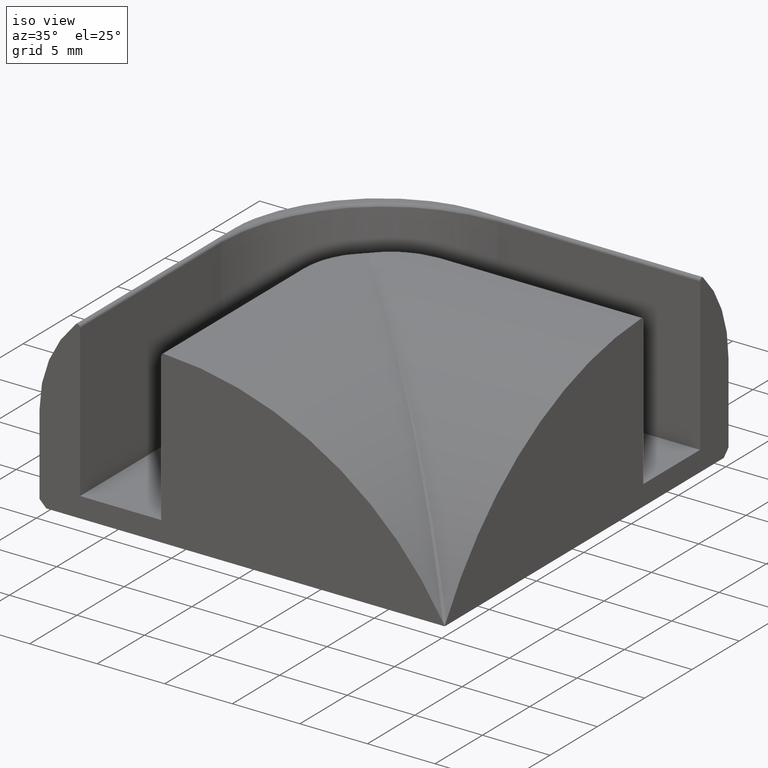
[diagram: clean part render]
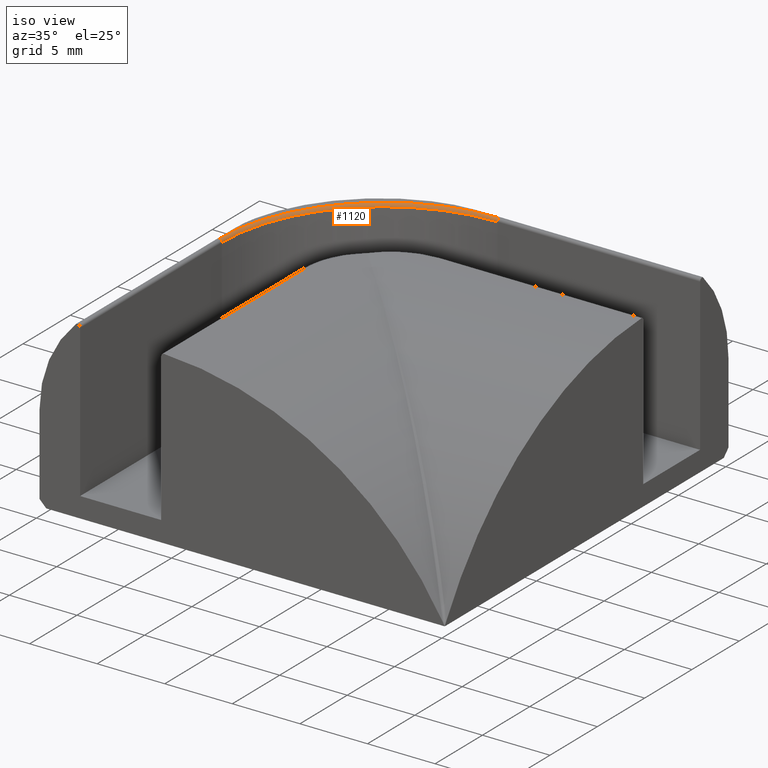
[diagram: same view with one face highlighted and labeled with its STEP entity id]
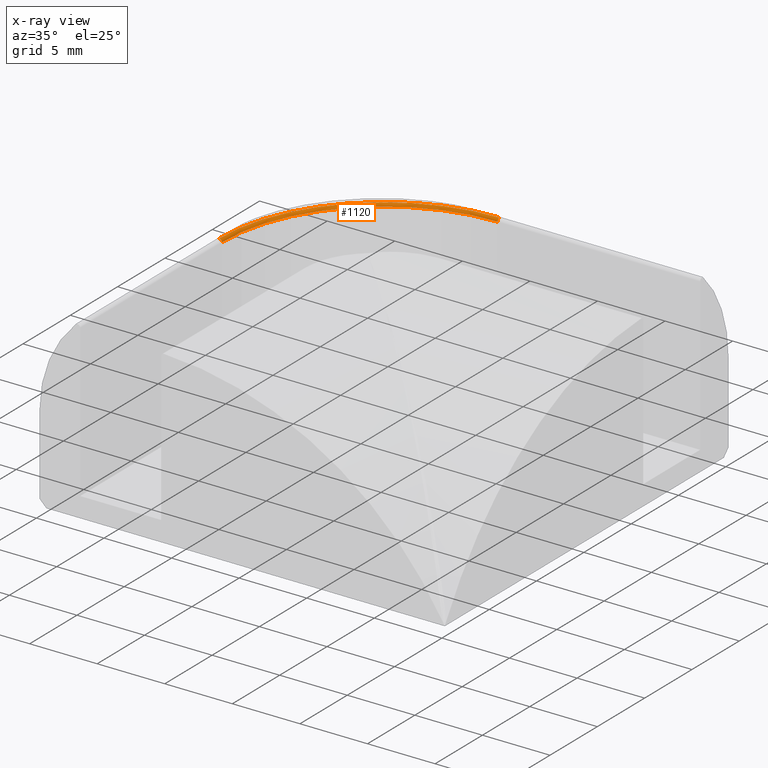
[diagram: x-ray of the same camera — body ghosted, the highlighted face saturated]
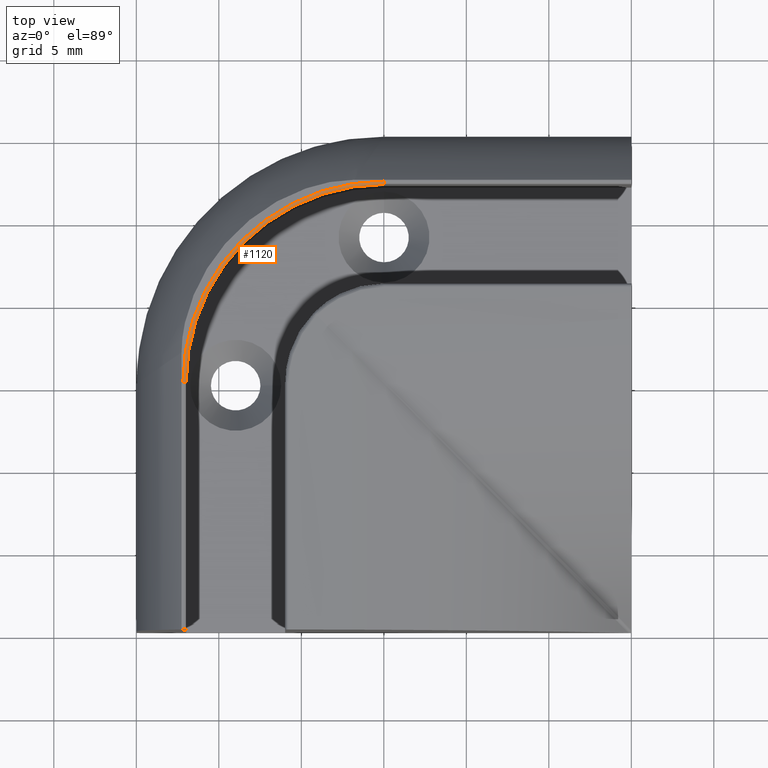
[diagram: same view with one face highlighted and labeled with its STEP entity id]
A machine part, iso view. The second image highlights one B-rep face of the part: STEP entity #1120.
The next image is the same camera in x-ray: the body ghosted, the highlighted face saturated — about 0% of this face is hidden behind the body in this view.
A second angle (top view) of the same face is appended — the face is thin or edge-on in the first view.
In plain terms, the highlighted face is a freeform B-spline surface patch.
Its self-contained STEP definition (entity closure, byte-faithful):
#863=CARTESIAN_POINT('',(-27.179082829488493,15.282160070544137,12.641907809360530));
#864=VERTEX_POINT('',#863);
#865=CARTESIAN_POINT('',(-26.979082826508261,15.282160070544137,12.441907806380298));
#866=VERTEX_POINT('',#865);
#867=CARTESIAN_POINT('',(-27.179082829488493,15.282160070544137,12.441907806380298));
#868=DIRECTION('',(0.0,1.0,-6.123234E-017));
#869=DIRECTION('',(1.0,0.0,0.0));
#870=AXIS2_PLACEMENT_3D('',#867,#868,#869);
#871=CIRCLE('',#870,0.200000002980232);
#872=EDGE_CURVE('',#864,#866,#871,.T.);
#905=CARTESIAN_POINT('',(-14.979082826508261,27.282160070544137,12.441907806380298));
#906=VERTEX_POINT('',#905);
#924=CARTESIAN_POINT('',(-14.979082826508261,27.482160073524369,12.641907809360530));
#925=VERTEX_POINT('',#924);
#932=CARTESIAN_POINT('',(-14.979082826508261,27.482160073524369,12.441907806380298));
#933=DIRECTION('',(-1.0,0.0,0.0));
#934=DIRECTION('',(0.0,-1.0,6.123234E-017));
#935=AXIS2_PLACEMENT_3D('',#932,#933,#934);
#936=CIRCLE('',#935,0.200000002980232);
#937=EDGE_CURVE('',#906,#925,#936,.T.);
#954=CARTESIAN_POINT('',(-14.979082826508261,15.282160070544137,12.641907809360530));
#955=DIRECTION('',(0.0,6.123234E-017,1.0));
#956=DIRECTION('',(0.0,1.0,-6.123234E-017));
#957=AXIS2_PLACEMENT_3D('',#954,#955,#956);
#958=CIRCLE('',#957,12.200000002980232);
#959=EDGE_CURVE('',#925,#864,#958,.T.);
#1007=CARTESIAN_POINT('',(-14.979082826508261,15.282160070544137,12.441907806380298));
#1008=DIRECTION('',(0.0,6.123234E-017,1.0));
#1009=DIRECTION('',(0.0,1.0,-6.123234E-017));
#1010=AXIS2_PLACEMENT_3D('',#1007,#1008,#1009);
#1011=CIRCLE('',#1010,12.0);
#1012=EDGE_CURVE('',#906,#866,#1011,.T.);
#1036=CARTESIAN_POINT('',(-14.979082826508261,27.282160070544137,12.441907806380298));
#1037=CARTESIAN_POINT('',(-14.979082826508261,27.282160070544137,12.467919849703391));
#1038=CARTESIAN_POINT('',(-14.979082826508265,27.292567825922387,12.520513371020270));
#1039=CARTESIAN_POINT('',(-14.979082826508257,27.337077489067873,12.586990390836782));
#1040=CARTESIAN_POINT('',(-14.979082826508263,27.403554508884405,12.631500053982290));
#1041=CARTESIAN_POINT('',(-14.979082826508261,27.456148030201277,12.641907809360530));
#1042=CARTESIAN_POINT('',(-14.979082826508261,27.482160073524369,12.641907809360530));
#1043=CARTESIAN_POINT('',(-15.763219949144746,27.282160070544133,12.441907806380298));
#1044=CARTESIAN_POINT('',(-15.763219949144746,27.282160070544133,12.467919849703391));
#1045=CARTESIAN_POINT('',(-15.763900041424366,27.292567825922383,12.520513371020270));
#1046=CARTESIAN_POINT('',(-15.766808514690062,27.337077489067877,12.586990390836782));
#1047=CARTESIAN_POINT('',(-15.771152439610097,27.403554508884408,12.631500053982290));
#1048=CARTESIAN_POINT('',(-15.774589150649657,27.456148030201273,12.641907809360530));
#1049=CARTESIAN_POINT('',(-15.776288901383429,27.482160073524369,12.641907809360530));
#1050=CARTESIAN_POINT('',(-17.335839998323738,27.127451650270100,12.441907806380298));
#1051=CARTESIAN_POINT('',(-17.335839998323738,27.127451650270100,12.467919849703389));
#1052=CARTESIAN_POINT('',(-17.337884044334587,27.137725225032231,12.520513371020268));
#1053=CARTESIAN_POINT('',(-17.346625583320691,27.181661053205062,12.586990390836782));
#1054=CARTESIAN_POINT('',(-17.359681432755146,27.247281026794894,12.631500053982290));
#1055=CARTESIAN_POINT('',(-17.370010612634697,27.299196493061800,12.641907809360532));
#1056=CARTESIAN_POINT('',(-17.375119285105963,27.324873179540678,12.641907809360532));
#1057=CARTESIAN_POINT('',(-19.600730226360600,26.440179730535863,12.441907806380298));
#1058=CARTESIAN_POINT('',(-19.600730226360600,26.440179730535863,12.467919849703394));
#1059=CARTESIAN_POINT('',(-19.604738640992455,26.449857225463123,12.520513371020277));
#1060=CARTESIAN_POINT('',(-19.621880971737831,26.491243866832853,12.586990390836785));
#1061=CARTESIAN_POINT('',(-19.647483750553260,26.553056524670389,12.631500053982290));
#1062=CARTESIAN_POINT('',(-19.667739476473521,26.601959820073894,12.641907809360527));
#1063=CARTESIAN_POINT('',(-19.677757684172608,26.626146727640190,12.641907809360527));
#1064=CARTESIAN_POINT('',(-21.688943185569890,25.324116191663901,12.441907806380302));
#1065=CARTESIAN_POINT('',(-21.688943185569890,25.324116191663901,12.467919849703392));
#1066=CARTESIAN_POINT('',(-21.694762734339836,25.332825710232864,12.520513371020263));
#1067=CARTESIAN_POINT('',(-21.719650536367762,25.370072717255614,12.586990390836789));
#1068=CARTESIAN_POINT('',(-21.756821496372375,25.425702660260647,12.631500053982290));
#1069=CARTESIAN_POINT('',(-21.786229428358013,25.469714479703907,12.641907809360536));
#1070=CARTESIAN_POINT('',(-21.800774193220658,25.491482129509837,12.641907809360536));
#1071=CARTESIAN_POINT('',(-23.519050767820765,23.822128011856641,12.441907806380296));
#1072=CARTESIAN_POINT('',(-23.519050767820765,23.822128011856641,12.467919849703391));
#1073=CARTESIAN_POINT('',(-23.526457592593378,23.829534836629254,12.520513371020265));
#1074=CARTESIAN_POINT('',(-23.558133517288457,23.861210761324337,12.586990390836784));
#1075=CARTESIAN_POINT('',(-23.605442818794060,23.908520062829936,12.631500053982290));
#1076=CARTESIAN_POINT('',(-23.642871734291290,23.945948978327166,12.641907809360527));
#1077=CARTESIAN_POINT('',(-23.661383568963565,23.964460812999441,12.641907809360527));
#1078=CARTESIAN_POINT('',(-25.021038947628014,21.992020429605766,12.441907806380298));
#1079=CARTESIAN_POINT('',(-25.021038947628014,21.992020429605766,12.467919849703392));
#1080=CARTESIAN_POINT('',(-25.029748466196978,21.997839978375705,12.520513371020263));
#1081=CARTESIAN_POINT('',(-25.066995473219730,22.022727780403638,12.586990390836785));
#1082=CARTESIAN_POINT('',(-25.122625416224764,22.059898740408251,12.631500053982290));
#1083=CARTESIAN_POINT('',(-25.166637235668023,22.089306672393892,12.641907809360529));
#1084=CARTESIAN_POINT('',(-25.188404885473961,22.103851437256537,12.641907809360529));
#1085=CARTESIAN_POINT('',(-26.137102486499998,19.903807470396483,12.441907806380298));
#1086=CARTESIAN_POINT('',(-26.137102486499998,19.903807470396483,12.467919849703394));
#1087=CARTESIAN_POINT('',(-26.146779981427230,19.907815885028327,12.520513371020265));
#1088=CARTESIAN_POINT('',(-26.188166622796992,19.924958215773721,12.586990390836789));
#1089=CARTESIAN_POINT('',(-26.249979280634530,19.950560994589132,12.631500053982291));
#1090=CARTESIAN_POINT('',(-26.298882576038014,19.970816720509397,12.641907809360532));
#1091=CARTESIAN_POINT('',(-26.323069483604321,19.980834928208481,12.641907809360532));
#1092=CARTESIAN_POINT('',(-26.824374406234227,17.638917242359611,12.441907806380296));
#1093=CARTESIAN_POINT('',(-26.824374406234227,17.638917242359611,12.467919849703392));
#1094=CARTESIAN_POINT('',(-26.834647980996372,17.640961288370463,12.520513371020268));
#1095=CARTESIAN_POINT('',(-26.878583809169193,17.649702827356563,12.586990390836791));
#1096=CARTESIAN_POINT('',(-26.944203782759004,17.662758676791029,12.631500053982290));
#1097=CARTESIAN_POINT('',(-26.996119249025924,17.673087856670577,12.641907809360532));
#1098=CARTESIAN_POINT('',(-27.021795935504795,17.678196529141850,12.641907809360532));
#1099=CARTESIAN_POINT('',(-26.979082826508254,16.066297193180620,12.441907806380298));
#1100=CARTESIAN_POINT('',(-26.979082826508261,16.066297193180620,12.467919849703391));
#1101=CARTESIAN_POINT('',(-26.989490581886496,16.066977285460240,12.520513371020270));
#1102=CARTESIAN_POINT('',(-27.034000245032004,16.069885758725938,12.586990390836784));
#1103=CARTESIAN_POINT('',(-27.100477264848521,16.074229683645974,12.631500053982290));
#1104=CARTESIAN_POINT('',(-27.153070786165397,16.077666394685533,12.641907809360530));
#1105=CARTESIAN_POINT('',(-27.179082829488493,16.079366145419307,12.641907809360530));
#1106=CARTESIAN_POINT('',(-26.979082826508261,15.282160070544137,12.441907806380298));
#1107=CARTESIAN_POINT('',(-26.979082826508261,15.282160070544137,12.467919849703391));
#1108=CARTESIAN_POINT('',(-26.989490581886507,15.282160070544140,12.520513371020270));
#1109=CARTESIAN_POINT('',(-27.034000245031997,15.282160070544135,12.586990390836782));
#1110=CARTESIAN_POINT('',(-27.100477264848529,15.282160070544137,12.631500053982290));
#1111=CARTESIAN_POINT('',(-27.153070786165401,15.282160070544137,12.641907809360530));
#1112=CARTESIAN_POINT('',(-27.179082829488493,15.282160070544137,12.641907809360530));
#1113=B_SPLINE_SURFACE_WITH_KNOTS('',3,3,((#1036,#1043,#1050,#1057,#1064,#1071,#1078,#1085,#1092,#1099,#1106),(#1037,#1044,#1051,#1058,#1065,#1072,#1079,#1086,#1093,#1100,#1107),(#1038,#1045,#1052,#1059,#1066,#1073,#1080,#1087,#1094,#1101,#1108),(#1039,#1046,#1053,#1060,#1067,#1074,#1081,#1088,#1095,#1102,#1109),(#1040,#1047,#1054,#1061,#1068,#1075,#1082,#1089,#1096,#1103,#1110),(#1041,#1048,#1055,#1062,#1069,#1076,#1083,#1090,#1097,#1104,#1111),(#1042,#1049,#1056,#1063,#1070,#1077,#1084,#1091,#1098,#1105,#1112)),.UNSPECIFIED.,.F.,.F.,.U.,(4,1,1,1,4),(4,1,1,1,1,1,1,1,4),(0.0,0.078036129969280,0.156072259938560,0.234108389907840,0.312144519877121),(0.0,2.367986921040828,4.735973842081656,7.103960763122484,9.471947684163311,11.839934605204141,14.207921526244970,16.575908447285798,18.943895368326629),.UNSPECIFIED.);
#1114=ORIENTED_EDGE('',*,*,#937,.T.);
#1115=ORIENTED_EDGE('',*,*,#959,.T.);
#1116=ORIENTED_EDGE('',*,*,#872,.T.);
#1117=ORIENTED_EDGE('',*,*,#1012,.F.);
#1118=EDGE_LOOP('',(#1114,#1115,#1116,#1117));
#1119=FACE_OUTER_BOUND('',#1118,.T.);
#1120=ADVANCED_FACE('',(#1119),#1113,.T.);